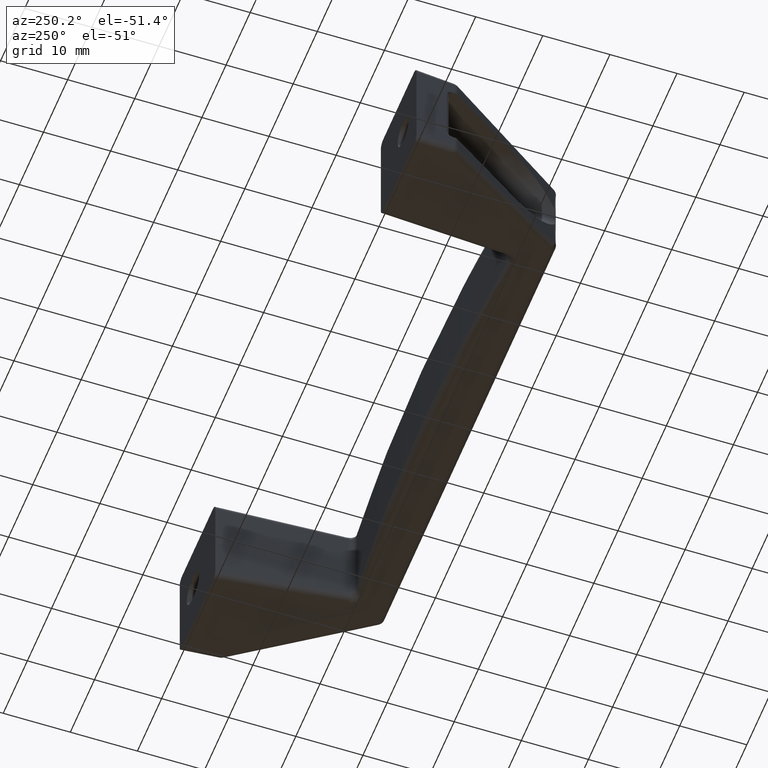
[diagram: clean part render]
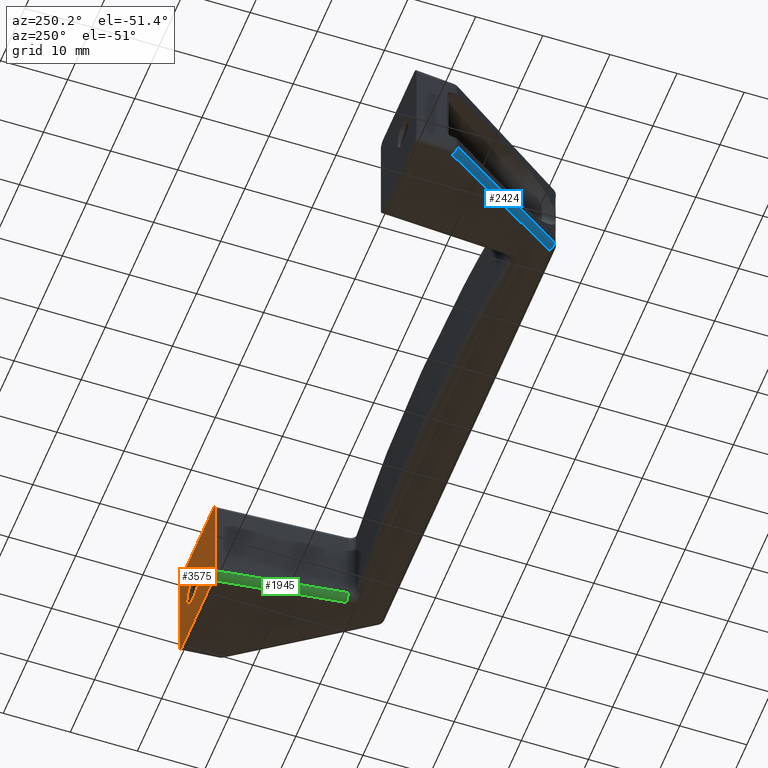
[diagram: same view with three faces highlighted in distinct colors, each labeled with its STEP entity id]
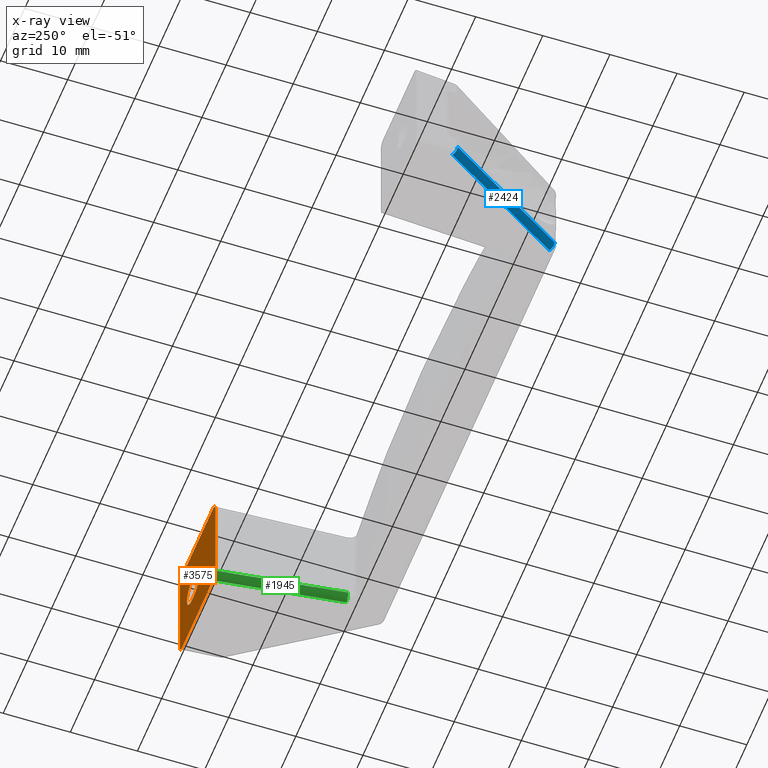
[diagram: x-ray of the same camera — body ghosted, the three highlighted faces saturated]
A machine part, auxiliary view with three faces highlighted in distinct colors.
The next image is the same camera in x-ray (body ghosted, the three faces saturated) — at least one of them is partly hidden behind the body in this view.
Their STEP definitions:

[orange] entity #3575 — the highlighted face is a freeform B-spline surface patch.
#803=CARTESIAN_POINT('',(87.299999999999997,0.0,-2.250000000000200));
#804=VERTEX_POINT('',#803);
#805=CARTESIAN_POINT('',(87.299999999999997,0.0,2.249999999999885));
#806=VERTEX_POINT('',#805);
#807=CARTESIAN_POINT('',(87.299999999999997,0.0,-2.250000000000113));
#808=CARTESIAN_POINT('',(89.550000000000011,0.0,-2.250000000000114));
#809=CARTESIAN_POINT('',(89.550000000000011,0.0,-1.136868E-013));
#810=CARTESIAN_POINT('',(89.550000000000011,0.0,2.249999999999886));
#811=CARTESIAN_POINT('',(87.299999999999997,0.0,2.249999999999886));
#819=(BOUNDED_CURVE()B_SPLINE_CURVE(2,(#807,#808,#809,#810,#811),.UNSPECIFIED.,.F.,.U.)B_SPLINE_CURVE_WITH_KNOTS((3,2,3),(0.0,0.500000000000000,1.0),.UNSPECIFIED.)CURVE()GEOMETRIC_REPRESENTATION_ITEM()RATIONAL_B_SPLINE_CURVE((1.0,0.707106781186547,1.0,0.707106781186547,1.0))REPRESENTATION_ITEM(''));
#820=EDGE_CURVE('',#804,#806,#819,.T.);
#859=CARTESIAN_POINT('',(86.700000000000003,0.0,-2.250000000000140));
#860=VERTEX_POINT('',#859);
#861=CARTESIAN_POINT('',(86.700000000000003,0.0,-2.250000000000140));
#862=CARTESIAN_POINT('',(87.299999999999997,0.0,-2.250000000000200));
#863=QUASI_UNIFORM_CURVE('',1,(#861,#862),.UNSPECIFIED.,.F.,.U.);
#864=EDGE_CURVE('',#860,#804,#863,.T.);
#900=CARTESIAN_POINT('',(86.700000000000003,0.0,2.249999999999915));
#901=VERTEX_POINT('',#900);
#902=CARTESIAN_POINT('',(86.700000000000003,0.0,2.249999999999916));
#903=CARTESIAN_POINT('',(84.449999999999974,0.0,2.249999999999917));
#904=CARTESIAN_POINT('',(84.449999999999974,0.0,-1.136868E-013));
#905=CARTESIAN_POINT('',(84.449999999999974,0.0,-2.250000000000143));
#906=CARTESIAN_POINT('',(86.700000000000003,0.0,-2.250000000000143));
#914=(BOUNDED_CURVE()B_SPLINE_CURVE(2,(#902,#903,#904,#905,#906),.UNSPECIFIED.,.F.,.U.)B_SPLINE_CURVE_WITH_KNOTS((3,2,3),(0.0,0.500000000000000,1.0),.UNSPECIFIED.)CURVE()GEOMETRIC_REPRESENTATION_ITEM()RATIONAL_B_SPLINE_CURVE((1.0,0.707106781186548,1.0,0.707106781186548,1.0))REPRESENTATION_ITEM(''));
#915=EDGE_CURVE('',#901,#860,#914,.T.);
#948=CARTESIAN_POINT('',(87.299999999999997,0.0,2.249999999999885));
#949=CARTESIAN_POINT('',(86.700000000000003,0.0,2.249999999999915));
#950=QUASI_UNIFORM_CURVE('',1,(#948,#949),.UNSPECIFIED.,.F.,.U.);
#951=EDGE_CURVE('',#806,#901,#950,.T.);
#1801=CARTESIAN_POINT('',(77.750000000000000,0.0,6.993604590958550));
#1802=VERTEX_POINT('',#1801);
#1803=CARTESIAN_POINT('',(78.759664474064095,0.0,7.999999999999799));
#1804=VERTEX_POINT('',#1803);
#1805=CARTESIAN_POINT('',(77.750000000000000,0.0,6.993604590958550));
#1806=CARTESIAN_POINT('',(77.749999999999957,0.0,7.409853353384050));
#1807=CARTESIAN_POINT('',(78.046031807291214,0.0,7.704926676691921));
#1808=CARTESIAN_POINT('',(78.342063614582457,0.0,7.999999999999792));
#1809=CARTESIAN_POINT('',(78.759664474064095,0.0,7.999999999999803));
#1817=(BOUNDED_CURVE()B_SPLINE_CURVE(2,(#1805,#1806,#1807,#1808,#1809),.UNSPECIFIED.,.F.,.U.)B_SPLINE_CURVE_WITH_KNOTS((3,2,3),(0.0,0.500000000000000,1.0),.UNSPECIFIED.)CURVE()GEOMETRIC_REPRESENTATION_ITEM()RATIONAL_B_SPLINE_CURVE((1.0,0.923398901999178,1.0,0.923398901999178,1.0))REPRESENTATION_ITEM(''));
#1818=EDGE_CURVE('',#1802,#1804,#1817,.T.);
#1914=CARTESIAN_POINT('',(77.750000000000000,0.0,-6.993604590958770));
#1915=VERTEX_POINT('',#1914);
#1921=CARTESIAN_POINT('',(78.759664474064010,0.0,-8.0));
#1922=VERTEX_POINT('',#1921);
#1923=CARTESIAN_POINT('',(78.759664474064010,0.0,-8.0));
#1924=CARTESIAN_POINT('',(78.342063614582244,0.0,-7.999999999999989));
#1925=CARTESIAN_POINT('',(78.046031807290987,0.0,-7.704926676691992));
#1926=CARTESIAN_POINT('',(77.749999999999687,0.0,-7.409853353383995));
#1927=CARTESIAN_POINT('',(77.750000000000000,0.0,-6.993604590958770));
#1935=(BOUNDED_CURVE()B_SPLINE_CURVE(2,(#1923,#1924,#1925,#1926,#1927),.UNSPECIFIED.,.F.,.U.)B_SPLINE_CURVE_WITH_KNOTS((3,2,3),(0.0,0.500000000000000,1.0),.UNSPECIFIED.)CURVE()GEOMETRIC_REPRESENTATION_ITEM()RATIONAL_B_SPLINE_CURVE((1.0,0.923398901999143,1.0,0.923398901999143,1.0))REPRESENTATION_ITEM(''));
#1936=EDGE_CURVE('',#1922,#1915,#1935,.T.);
#3090=CARTESIAN_POINT('',(92.499999999973696,0.0,-7.001370465245270));
#3091=VERTEX_POINT('',#3090);
#3092=CARTESIAN_POINT('',(91.501370465219210,0.0,-8.0));
#3093=VERTEX_POINT('',#3092);
#3094=CARTESIAN_POINT('',(92.499999999973696,0.0,-7.001370465245270));
#3095=CARTESIAN_POINT('',(92.499999999973696,0.0,-8.000000000000078));
#3096=CARTESIAN_POINT('',(91.501370465219210,0.0,-8.0));
#3104=(BOUNDED_CURVE()B_SPLINE_CURVE(2,(#3094,#3095,#3096),.UNSPECIFIED.,.F.,.U.)CURVE()GEOMETRIC_REPRESENTATION_ITEM()QUASI_UNIFORM_CURVE()RATIONAL_B_SPLINE_CURVE((1.0,0.708074520201013,1.0))REPRESENTATION_ITEM(''));
#3105=EDGE_CURVE('',#3091,#3093,#3104,.T.);
#3135=CARTESIAN_POINT('',(91.501370465219409,0.0,7.999999999999799));
#3136=VERTEX_POINT('',#3135);
#3137=CARTESIAN_POINT('',(92.499999999973696,0.0,7.001370465245070));
#3138=VERTEX_POINT('',#3137);
#3139=CARTESIAN_POINT('',(91.501370465219409,0.0,7.999999999999803));
#3140=CARTESIAN_POINT('',(92.499999999974207,0.0,7.999999999999781));
#3141=CARTESIAN_POINT('',(92.499999999973696,0.0,7.001370465245070));
#3149=(BOUNDED_CURVE()B_SPLINE_CURVE(2,(#3139,#3140,#3141),.UNSPECIFIED.,.F.,.U.)CURVE()GEOMETRIC_REPRESENTATION_ITEM()QUASI_UNIFORM_CURVE()RATIONAL_B_SPLINE_CURVE((1.0,0.708074520200900,1.0))REPRESENTATION_ITEM(''));
#3150=EDGE_CURVE('',#3136,#3138,#3149,.T.);
#3171=CARTESIAN_POINT('',(77.750000000000000,0.0,6.993604590958550));
#3172=CARTESIAN_POINT('',(77.750000000000000,0.0,-6.993604590958770));
#3173=QUASI_UNIFORM_CURVE('',1,(#3171,#3172),.UNSPECIFIED.,.F.,.U.);
#3174=EDGE_CURVE('',#1802,#1915,#3173,.T.);
#3386=CARTESIAN_POINT('',(91.501370465219210,0.0,-8.0));
#3387=CARTESIAN_POINT('',(78.759664474064010,0.0,-8.0));
#3388=QUASI_UNIFORM_CURVE('',1,(#3386,#3387),.UNSPECIFIED.,.F.,.U.);
#3389=EDGE_CURVE('',#3093,#1922,#3388,.T.);
#3424=CARTESIAN_POINT('',(91.501370465219409,0.0,7.999999999999799));
#3425=CARTESIAN_POINT('',(78.759664474064095,0.0,7.999999999999799));
#3426=QUASI_UNIFORM_CURVE('',1,(#3424,#3425),.UNSPECIFIED.,.F.,.U.);
#3427=EDGE_CURVE('',#3136,#1804,#3426,.T.);
#3484=CARTESIAN_POINT('',(92.499999999973696,0.0,-7.001370465245270));
#3485=CARTESIAN_POINT('',(92.499999999973696,0.0,7.001370465245070));
#3486=QUASI_UNIFORM_CURVE('',1,(#3484,#3485),.UNSPECIFIED.,.F.,.U.);
#3487=EDGE_CURVE('',#3091,#3138,#3486,.T.);
#3554=CARTESIAN_POINT('',(77.013237528589670,0.0,8.799199968988685));
#3555=CARTESIAN_POINT('',(77.013237528589670,0.0,-8.799200398142329));
#3556=CARTESIAN_POINT('',(93.236762867009872,0.0,8.799199968988685));
#3557=CARTESIAN_POINT('',(93.236762867009872,0.0,-8.799200398142329));
#3558=B_SPLINE_SURFACE_WITH_KNOTS('',1,1,((#3554,#3556),(#3555,#3557)),.UNSPECIFIED.,.F.,.F.,.U.,(2,2),(2,2),(0.0,17.598400367131010),(0.0,16.223525338420199),.UNSPECIFIED.);
#3559=ORIENTED_EDGE('',*,*,#3487,.F.);
#3560=ORIENTED_EDGE('',*,*,#3105,.T.);
#3561=ORIENTED_EDGE('',*,*,#3389,.T.);
#3562=ORIENTED_EDGE('',*,*,#1936,.T.);
#3563=ORIENTED_EDGE('',*,*,#3174,.F.);
#3564=ORIENTED_EDGE('',*,*,#1818,.T.);
#3565=ORIENTED_EDGE('',*,*,#3427,.F.);
#3566=ORIENTED_EDGE('',*,*,#3150,.T.);
#3567=EDGE_LOOP('',(#3559,#3560,#3561,#3562,#3563,#3564,#3565,#3566));
#3568=FACE_OUTER_BOUND('',#3567,.T.);
#3569=ORIENTED_EDGE('',*,*,#951,.T.);
#3570=ORIENTED_EDGE('',*,*,#915,.T.);
#3571=ORIENTED_EDGE('',*,*,#864,.T.);
#3572=ORIENTED_EDGE('',*,*,#820,.T.);
#3573=EDGE_LOOP('',(#3569,#3570,#3571,#3572));
#3574=FACE_BOUND('',#3573,.T.);
#3575=ADVANCED_FACE('',(#3568,#3574),#3558,.F.);

[blue] entity #2424 — the highlighted face is a freeform B-spline surface patch.
#2260=CARTESIAN_POINT('',(7.204285131692690,-25.144639035015100,-5.709396283639130));
#2261=VERTEX_POINT('',#2260);
#2262=CARTESIAN_POINT('',(8.042955699638121,-24.652335956243050,-6.708025818393909));
#2263=VERTEX_POINT('',#2262);
#2264=CARTESIAN_POINT('',(7.204285131692694,-25.144639035015022,-5.709396283639130));
#2265=CARTESIAN_POINT('',(7.227528242843051,-25.180430287525507,-6.680349567239174));
#2266=CARTESIAN_POINT('',(8.042955699638121,-24.652335956243050,-6.708025818393909));
#2274=(BOUNDED_CURVE()B_SPLINE_CURVE(2,(#2264,#2265,#2266),.UNSPECIFIED.,.F.,.U.)CURVE()GEOMETRIC_REPRESENTATION_ITEM()QUASI_UNIFORM_CURVE()RATIONAL_B_SPLINE_CURVE((1.0,0.717113730416869,1.0))REPRESENTATION_ITEM(''));
#2275=EDGE_CURVE('',#2261,#2263,#2274,.T.);
#2380=CARTESIAN_POINT('',(7.509979728855471,-25.614094790423941,-5.647511316366069));
#2381=CARTESIAN_POINT('',(-5.349820028286406,-5.811739702729609,-6.685308771086306));
#2382=CARTESIAN_POINT('',(7.502063856426413,-25.675802602235674,-6.726877489163240));
#2383=CARTESIAN_POINT('',(-5.357735900715454,-5.873447514541350,-7.764674943883482));
#2384=CARTESIAN_POINT('',(8.406994831089236,-25.085829259995393,-6.682908902702498));
#2385=CARTESIAN_POINT('',(-4.452804926052629,-5.283474172301072,-7.720706357422735));
#2393=(BOUNDED_SURFACE()B_SPLINE_SURFACE(1,2,((#2380,#2382,#2384),(#2381,#2383,#2385)),.UNSPECIFIED.,.F.,.F.,.U.)B_SPLINE_SURFACE_WITH_KNOTS((2,2),(3,3),(0.0,23.634397398070959),(0.0,0.993696946213581),.UNSPECIFIED.)GEOMETRIC_REPRESENTATION_ITEM()RATIONAL_B_SPLINE_SURFACE(((1.0,0.677634979985900,0.995936231879982),(1.0,0.677634979985900,0.995936231879982)))REPRESENTATION_ITEM('')SURFACE());
#2394=CARTESIAN_POINT('',(-5.035857409310849,-6.296472384027100,-6.697186841373990));
#2395=VERTEX_POINT('',#2394);
#2396=CARTESIAN_POINT('',(-4.197186841365455,-5.804169305254971,-7.695816376128810));
#2397=VERTEX_POINT('',#2396);
#2398=CARTESIAN_POINT('',(-5.035857409310849,-6.296472384027100,-6.697186841373990));
#2399=CARTESIAN_POINT('',(-5.012614298160553,-6.332263636537608,-7.668140124974152));
#2400=CARTESIAN_POINT('',(-4.197186841365455,-5.804169305254971,-7.695816376128810));
#2408=(BOUNDED_CURVE()B_SPLINE_CURVE(2,(#2398,#2399,#2400),.UNSPECIFIED.,.F.,.U.)CURVE()GEOMETRIC_REPRESENTATION_ITEM()QUASI_UNIFORM_CURVE()RATIONAL_B_SPLINE_CURVE((1.0,0.717113730416827,1.0))REPRESENTATION_ITEM(''));
#2409=EDGE_CURVE('',#2395,#2397,#2408,.T.);
#2410=ORIENTED_EDGE('',*,*,#2409,.T.);
#2411=CARTESIAN_POINT('',(8.042955699638121,-24.652335956243050,-6.708025818393909));
#2412=CARTESIAN_POINT('',(-4.197186841365455,-5.804169305254971,-7.695816376128810));
#2413=QUASI_UNIFORM_CURVE('',1,(#2411,#2412),.UNSPECIFIED.,.F.,.U.);
#2414=EDGE_CURVE('',#2263,#2397,#2413,.T.);
#2415=ORIENTED_EDGE('',*,*,#2414,.F.);
#2416=ORIENTED_EDGE('',*,*,#2275,.F.);
#2417=CARTESIAN_POINT('',(-5.035857409310849,-6.296472384027100,-6.697186841373990));
#2418=CARTESIAN_POINT('',(7.204285131692690,-25.144639035015100,-5.709396283639130));
#2419=QUASI_UNIFORM_CURVE('',1,(#2417,#2418),.UNSPECIFIED.,.F.,.U.);
#2420=EDGE_CURVE('',#2395,#2261,#2419,.T.);
#2421=ORIENTED_EDGE('',*,*,#2420,.F.);
#2422=EDGE_LOOP('',(#2410,#2415,#2416,#2421));
#2423=FACE_OUTER_BOUND('',#2422,.T.);
#2424=ADVANCED_FACE('',(#2423),#2393,.T.);

[green] entity #1945 — the highlighted face is a freeform B-spline surface patch.
#1881=CARTESIAN_POINT('',(75.865033192714108,-19.583907367350449,-5.928599310937480));
#1882=CARTESIAN_POINT('',(77.812707410097644,0.643462762925177,-6.988670860201288));
#1883=CARTESIAN_POINT('',(75.816359094735560,-19.637847714110961,-7.047271579230366));
#1884=CARTESIAN_POINT('',(77.764033312119096,0.589522416164658,-8.107343128494186));
#1885=CARTESIAN_POINT('',(76.929479844881868,-19.740610488268722,-6.962960366978898));
#1886=CARTESIAN_POINT('',(78.877154062265419,0.486759642006899,-8.023031916242717));
#1894=(BOUNDED_SURFACE()B_SPLINE_SURFACE(1,2,((#1881,#1883,#1885),(#1882,#1884,#1886)),.UNSPECIFIED.,.F.,.F.,.U.)B_SPLINE_SURFACE_WITH_KNOTS((2,2),(3,3),(0.0,20.348554959352420),(0.0,0.994553319868445),.UNSPECIFIED.)GEOMETRIC_REPRESENTATION_ITEM()RATIONAL_B_SPLINE_SURFACE(((1.0,0.664457648895906,0.996344816285892),(1.0,0.664457648895906,0.996344816285892)))REPRESENTATION_ITEM('')SURFACE());
#1895=CARTESIAN_POINT('',(76.905840114864901,-19.252702087115399,-6.991008638416370));
#1896=VERTEX_POINT('',#1895);
#1897=CARTESIAN_POINT('',(75.910443916497798,-19.104520378352198,-5.992379103661790));
#1898=VERTEX_POINT('',#1897);
#1899=CARTESIAN_POINT('',(76.905840114864901,-19.252702087115392,-6.991008638416364));
#1900=CARTESIAN_POINT('',(76.492065095945961,-19.212969213705641,-6.993090950076303));
#1901=CARTESIAN_POINT('',(76.200216721418769,-19.169522603292489,-6.700294567137482));
#1902=CARTESIAN_POINT('',(75.908368346891592,-19.126075992879347,-6.407498184198663));
#1903=CARTESIAN_POINT('',(75.910443916497712,-19.104520378352230,-5.992379103661790));
#1911=(BOUNDED_CURVE()B_SPLINE_CURVE(2,(#1899,#1900,#1901,#1902,#1903),.UNSPECIFIED.,.F.,.U.)B_SPLINE_CURVE_WITH_KNOTS((3,2,3),(0.0,0.500000000000000,1.0),.UNSPECIFIED.)CURVE()GEOMETRIC_REPRESENTATION_ITEM()RATIONAL_B_SPLINE_CURVE((1.0,0.923398901999157,1.0,0.923398901999157,1.0))REPRESENTATION_ITEM(''));
#1912=EDGE_CURVE('',#1896,#1898,#1911,.T.);
#1913=ORIENTED_EDGE('',*,*,#1912,.T.);
#1914=CARTESIAN_POINT('',(77.750000000000000,0.0,-6.993604590958770));
#1915=VERTEX_POINT('',#1914);
#1916=CARTESIAN_POINT('',(77.750000000000000,0.0,-6.993604590958770));
#1917=CARTESIAN_POINT('',(75.910443916497798,-19.104520378352198,-5.992379103661790));
#1918=QUASI_UNIFORM_CURVE('',1,(#1916,#1917),.UNSPECIFIED.,.F.,.U.);
#1919=EDGE_CURVE('',#1915,#1898,#1918,.T.);
#1920=ORIENTED_EDGE('',*,*,#1919,.F.);
#1921=CARTESIAN_POINT('',(78.759664474064010,0.0,-8.0));
#1922=VERTEX_POINT('',#1921);
#1923=CARTESIAN_POINT('',(78.759664474064010,0.0,-8.0));
#1924=CARTESIAN_POINT('',(78.342063614582244,0.0,-7.999999999999989));
#1925=CARTESIAN_POINT('',(78.046031807290987,0.0,-7.704926676691992));
#1926=CARTESIAN_POINT('',(77.749999999999687,0.0,-7.409853353383995));
#1927=CARTESIAN_POINT('',(77.750000000000000,0.0,-6.993604590958770));
#1935=(BOUNDED_CURVE()B_SPLINE_CURVE(2,(#1923,#1924,#1925,#1926,#1927),.UNSPECIFIED.,.F.,.U.)B_SPLINE_CURVE_WITH_KNOTS((3,2,3),(0.0,0.500000000000000,1.0),.UNSPECIFIED.)CURVE()GEOMETRIC_REPRESENTATION_ITEM()RATIONAL_B_SPLINE_CURVE((1.0,0.923398901999143,1.0,0.923398901999143,1.0))REPRESENTATION_ITEM(''));
#1936=EDGE_CURVE('',#1922,#1915,#1935,.T.);
#1937=ORIENTED_EDGE('',*,*,#1936,.F.);
#1938=CARTESIAN_POINT('',(76.905840114864901,-19.252702087115399,-6.991008638416370));
#1939=CARTESIAN_POINT('',(78.759664474064010,0.0,-8.0));
#1940=QUASI_UNIFORM_CURVE('',1,(#1938,#1939),.UNSPECIFIED.,.F.,.U.);
#1941=EDGE_CURVE('',#1896,#1922,#1940,.T.);
#1942=ORIENTED_EDGE('',*,*,#1941,.F.);
#1943=EDGE_LOOP('',(#1913,#1920,#1937,#1942));
#1944=FACE_OUTER_BOUND('',#1943,.T.);
#1945=ADVANCED_FACE('',(#1944),#1894,.T.);